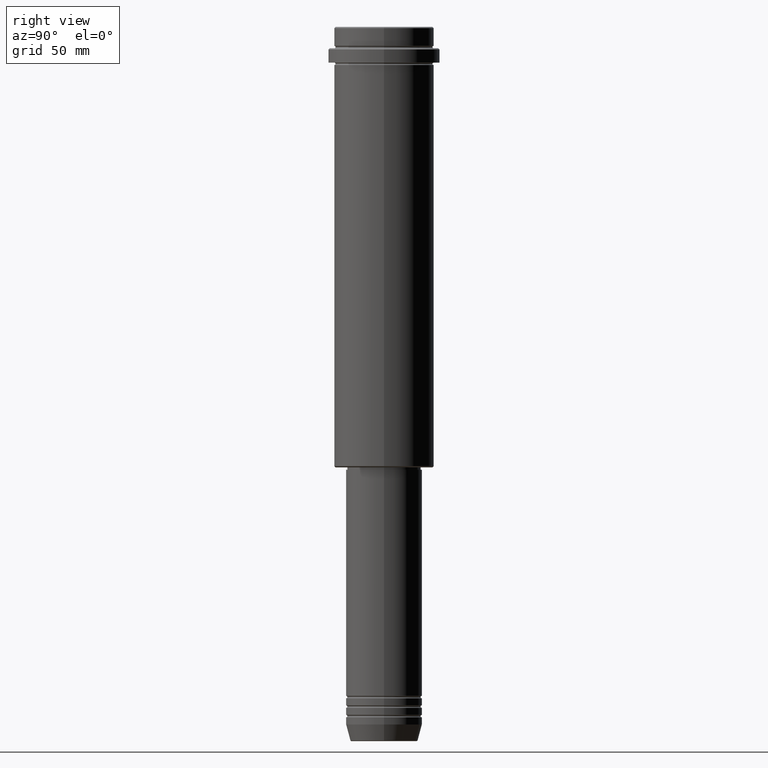
[diagram: clean part render]
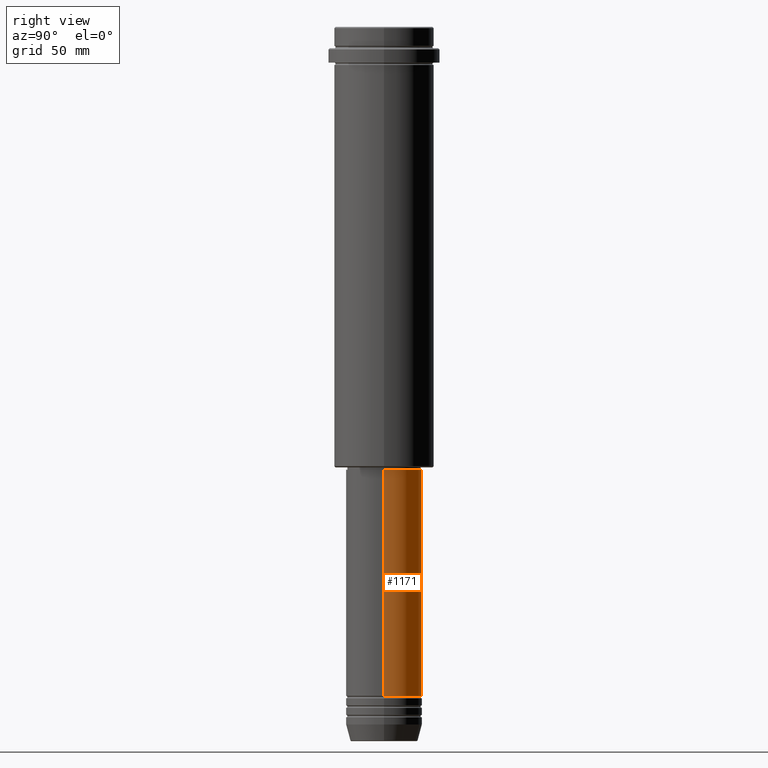
[diagram: same view with one face highlighted and labeled with its STEP entity id]
A machine part, right view. The second image highlights one B-rep face of the part: STEP entity #1171.
In plain terms, the highlighted cylindrical surface (partial cylindrical patch) has radius 16 mm, axis along (-0, -0, 1).
Its self-contained STEP definition (entity closure, byte-faithful):
#5 = LINE ( 'NONE', #244, #245 ) ;
#33 = VECTOR ( 'NONE', #1153, 1000.000000000000000 ) ;
#41 = CARTESIAN_POINT ( 'NONE',  ( 16.00000000000000000, 0.000000000000000000, -280.9999999999998863 ) ) ;
#78 = ORIENTED_EDGE ( 'NONE', *, *, #680, .T. ) ;
#99 = CARTESIAN_POINT ( 'NONE',  ( -16.00000000000000355, 1.959434878635765526E-15, -185.9999999999999147 ) ) ;
#107 = AXIS2_PLACEMENT_3D ( 'NONE', #1078, #1197, #1316 ) ;
#120 = CYLINDRICAL_SURFACE ( 'NONE', #316, 16.00000000000000000 ) ;
#121 = VERTEX_POINT ( 'NONE', #279 ) ;
#244 = CARTESIAN_POINT ( 'NONE',  ( 16.00000000000000000, 0.000000000000000000, 0.000000000000000000 ) ) ;
#245 = VECTOR ( 'NONE', #454, 1000.000000000000000 ) ;
#249 = CARTESIAN_POINT ( 'NONE',  ( 16.00000000000000355, 0.000000000000000000, -185.9999999999999147 ) ) ;
#279 = CARTESIAN_POINT ( 'NONE',  ( -16.00000000000000000, 1.959434878635765131E-15, -280.9999999999998863 ) ) ;
#316 = AXIS2_PLACEMENT_3D ( 'NONE', #1091, #1294, #418 ) ;
#349 = EDGE_CURVE ( 'NONE', #914, #1349, #5, .T. ) ;
#357 = ORIENTED_EDGE ( 'NONE', *, *, #1017, .T. ) ;
#418 = DIRECTION ( 'NONE',  ( 1.000000000000000000, 0.000000000000000000, 0.000000000000000000 ) ) ;
#424 = CARTESIAN_POINT ( 'NONE',  ( 0.000000000000000000, 0.000000000000000000, -280.9999999999998863 ) ) ;
#454 = DIRECTION ( 'NONE',  ( -0.000000000000000000, -0.000000000000000000, 1.000000000000000000 ) ) ;
#539 = DIRECTION ( 'NONE',  ( -0.000000000000000000, -0.000000000000000000, 1.000000000000000000 ) ) ;
#629 = CARTESIAN_POINT ( 'NONE',  ( -16.00000000000000000, 1.959434878635765131E-15, 0.000000000000000000 ) ) ;
#667 = FACE_OUTER_BOUND ( 'NONE', #991, .T. ) ;
#680 = EDGE_CURVE ( 'NONE', #914, #121, #868, .T. ) ;
#705 = VERTEX_POINT ( 'NONE', #99 ) ;
#848 = DIRECTION ( 'NONE',  ( 1.000000000000000000, 0.000000000000000000, 0.000000000000000000 ) ) ;
#868 = CIRCLE ( 'NONE', #917, 16.00000000000000000 ) ;
#903 = ORIENTED_EDGE ( 'NONE', *, *, #1160, .F. ) ;
#914 = VERTEX_POINT ( 'NONE', #41 ) ;
#917 = AXIS2_PLACEMENT_3D ( 'NONE', #424, #539, #848 ) ;
#991 = EDGE_LOOP ( 'NONE', ( #78, #357, #903, #1107 ) ) ;
#1017 = EDGE_CURVE ( 'NONE', #121, #705, #1266, .T. ) ;
#1048 = CIRCLE ( 'NONE', #107, 16.00000000000000355 ) ;
#1078 = CARTESIAN_POINT ( 'NONE',  ( 0.000000000000000000, 0.000000000000000000, -185.9999999999999147 ) ) ;
#1091 = CARTESIAN_POINT ( 'NONE',  ( 0.000000000000000000, 0.000000000000000000, 0.000000000000000000 ) ) ;
#1107 = ORIENTED_EDGE ( 'NONE', *, *, #349, .F. ) ;
#1153 = DIRECTION ( 'NONE',  ( -0.000000000000000000, -0.000000000000000000, 1.000000000000000000 ) ) ;
#1160 = EDGE_CURVE ( 'NONE', #1349, #705, #1048, .T. ) ;
#1171 = ADVANCED_FACE ( 'NONE', ( #667 ), #120, .T. ) ;
#1197 = DIRECTION ( 'NONE',  ( -0.000000000000000000, -0.000000000000000000, 1.000000000000000000 ) ) ;
#1266 = LINE ( 'NONE', #629, #33 ) ;
#1294 = DIRECTION ( 'NONE',  ( -0.000000000000000000, -0.000000000000000000, 1.000000000000000000 ) ) ;
#1316 = DIRECTION ( 'NONE',  ( 1.000000000000000000, 0.000000000000000000, 0.000000000000000000 ) ) ;
#1349 = VERTEX_POINT ( 'NONE', #249 ) ;